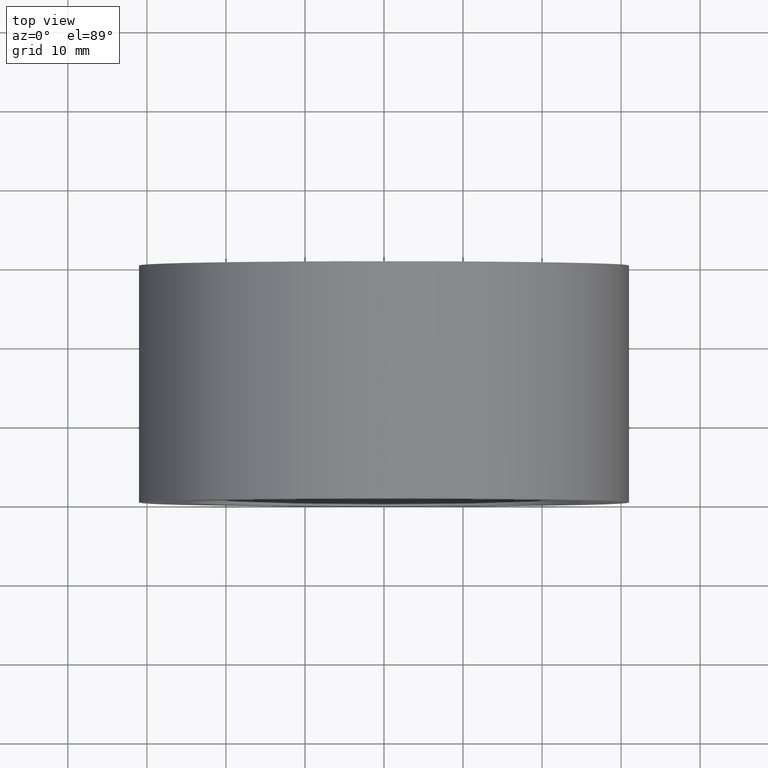
[diagram: clean part render]
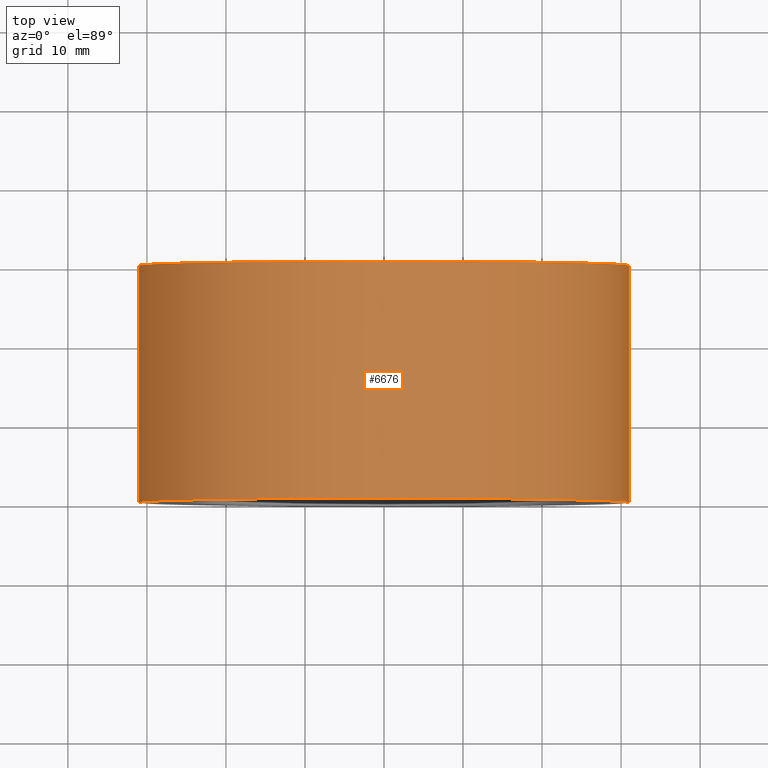
[diagram: same view with one face highlighted and labeled with its STEP entity id]
A machine part, top view. The second image highlights one B-rep face of the part: STEP entity #6676.
In plain terms, the highlighted cylindrical surface (partial cylindrical patch) has radius 31 mm, axis along (-0, 1, -0).
Its self-contained STEP definition (entity closure, byte-faithful):
#42 = DIRECTION ( 'NONE',  ( -1.156482317317871725E-16, 1.000000000000000000, -0.000000000000000000 ) ) ;
#525 = EDGE_LOOP ( 'NONE', ( #5479, #12259, #15066, #8209 ) ) ;
#674 = CARTESIAN_POINT ( 'NONE',  ( -31.00000000000001066, 29.99999999999999645, 0.000000000000000000 ) ) ;
#781 = VERTEX_POINT ( 'NONE', #1413 ) ;
#974 = VERTEX_POINT ( 'NONE', #15184 ) ;
#1413 = CARTESIAN_POINT ( 'NONE',  ( -31.00000000000000000, -3.585095183685402643E-15, 0.000000000000000000 ) ) ;
#1489 = CARTESIAN_POINT ( 'NONE',  ( 7.703719777548943412E-31, 0.000000000000000000, 0.000000000000000000 ) ) ;
#1800 = CARTESIAN_POINT ( 'NONE',  ( 31.00000000000000000, 3.585095183685402643E-15, 3.796405077356795115E-15 ) ) ;
#2390 = LINE ( 'NONE', #4614, #4780 ) ;
#3027 = CIRCLE ( 'NONE', #8698, 31.00000000000000000 ) ;
#4614 = CARTESIAN_POINT ( 'NONE',  ( 31.00000000000000000, 30.00000000000000000, 3.796405077356795115E-15 ) ) ;
#4780 = VECTOR ( 'NONE', #7056, 1000.000000000000000 ) ;
#4789 = DIRECTION ( 'NONE',  ( -1.000000000000000000, -1.119176436114068839E-16, 0.000000000000000000 ) ) ;
#4843 = CYLINDRICAL_SURFACE ( 'NONE', #9192, 31.00000000000000355 ) ;
#4964 = DIRECTION ( 'NONE',  ( -1.000000000000000000, -1.156482317317871725E-16, 0.000000000000000000 ) ) ;
#5037 = EDGE_CURVE ( 'NONE', #9983, #974, #11760, .T. ) ;
#5205 = EDGE_CURVE ( 'NONE', #781, #15238, #3027, .T. ) ;
#5479 = ORIENTED_EDGE ( 'NONE', *, *, #5205, .T. ) ;
#6676 = ADVANCED_FACE ( 'NONE', ( #11737 ), #4843, .T. ) ;
#7056 = DIRECTION ( 'NONE',  ( -1.156482317317871725E-16, 1.000000000000000000, -0.000000000000000000 ) ) ;
#7240 = DIRECTION ( 'NONE',  ( -1.156482317317871725E-16, 1.000000000000000000, -0.000000000000000000 ) ) ;
#7933 = LINE ( 'NONE', #15378, #8521 ) ;
#8145 = CARTESIAN_POINT ( 'NONE',  ( -3.469446951953614189E-15, 29.99999999999999645, 0.000000000000000000 ) ) ;
#8209 = ORIENTED_EDGE ( 'NONE', *, *, #12423, .F. ) ;
#8521 = VECTOR ( 'NONE', #42, 1000.000000000000000 ) ;
#8698 = AXIS2_PLACEMENT_3D ( 'NONE', #1489, #14548, #4964 ) ;
#9192 = AXIS2_PLACEMENT_3D ( 'NONE', #8145, #12889, #12746 ) ;
#9983 = VERTEX_POINT ( 'NONE', #674 ) ;
#10813 = CARTESIAN_POINT ( 'NONE',  ( -3.469446951953614978E-15, 30.00000000000000000, 0.000000000000000000 ) ) ;
#11737 = FACE_OUTER_BOUND ( 'NONE', #525, .T. ) ;
#11760 = CIRCLE ( 'NONE', #14872, 31.00000000000000711 ) ;
#12259 = ORIENTED_EDGE ( 'NONE', *, *, #12461, .T. ) ;
#12423 = EDGE_CURVE ( 'NONE', #781, #9983, #7933, .T. ) ;
#12461 = EDGE_CURVE ( 'NONE', #15238, #974, #2390, .T. ) ;
#12746 = DIRECTION ( 'NONE',  ( -1.000000000000000000, -1.119176436114069085E-16, 0.000000000000000000 ) ) ;
#12889 = DIRECTION ( 'NONE',  ( -1.156482317317871725E-16, 1.000000000000000000, -0.000000000000000000 ) ) ;
#14548 = DIRECTION ( 'NONE',  ( -1.156482317317871725E-16, 1.000000000000000000, -0.000000000000000000 ) ) ;
#14872 = AXIS2_PLACEMENT_3D ( 'NONE', #10813, #7240, #4789 ) ;
#15066 = ORIENTED_EDGE ( 'NONE', *, *, #5037, .F. ) ;
#15184 = CARTESIAN_POINT ( 'NONE',  ( 31.00000000000000711, 30.00000000000000355, 3.796405077356795904E-15 ) ) ;
#15238 = VERTEX_POINT ( 'NONE', #1800 ) ;
#15378 = CARTESIAN_POINT ( 'NONE',  ( -31.00000000000000711, 29.99999999999999289, 0.000000000000000000 ) ) ;